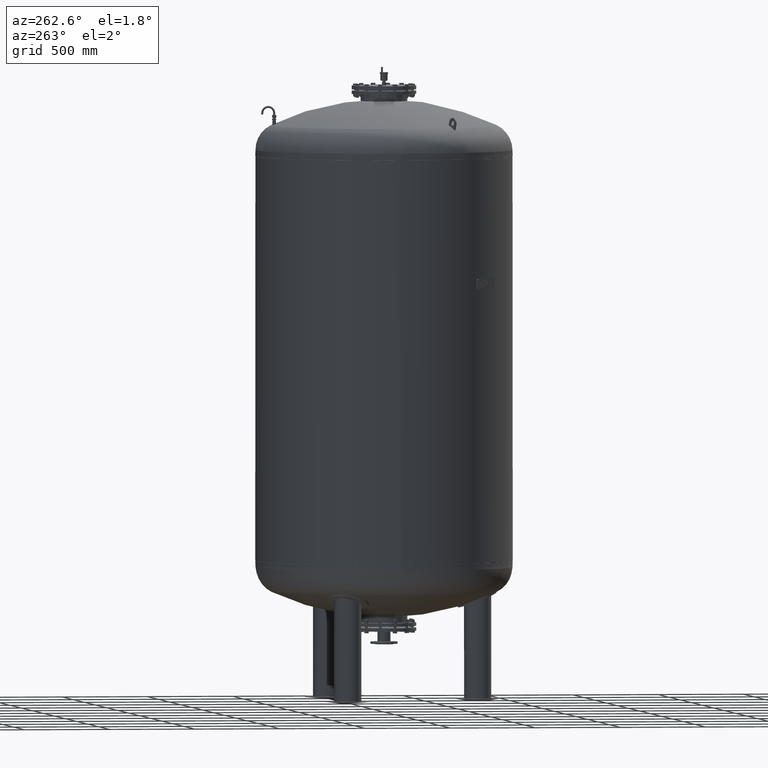
[diagram: clean part render]
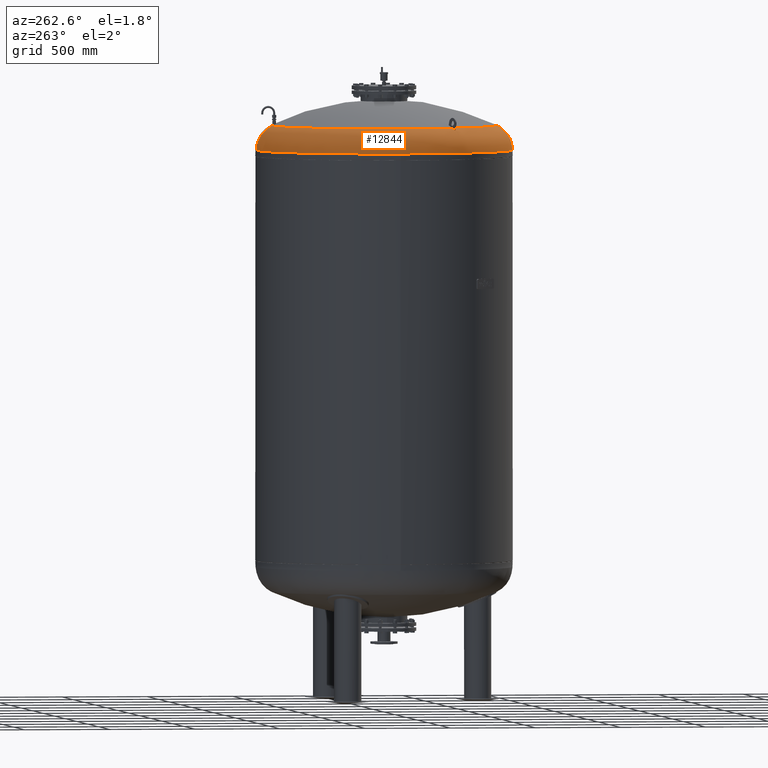
[diagram: same view with one face highlighted and labeled with its STEP entity id]
A machine part, auxiliary view. The second image highlights one B-rep face of the part: STEP entity #12844.
In plain terms, the highlighted toroidal blend (fillet) surface has major radius 591 mm and minor (blend) radius 159 mm.
Its self-contained STEP definition (entity closure, byte-faithful):
#12241=CARTESIAN_POINT('',(-750.0,3.761120E-014,3214.762332584101800));
#12242=VERTEX_POINT('',#12241);
#12249=CARTESIAN_POINT('',(1.267436E-013,750.0,3214.762332584101800));
#12250=VERTEX_POINT('',#12249);
#12251=CARTESIAN_POINT('',(1.459986E-014,-5.423428E-014,3214.762332584101800));
#12252=DIRECTION('',(0.0,0.0,-1.0));
#12253=DIRECTION('',(1.0,0.0,0.0));
#12254=AXIS2_PLACEMENT_3D('',#12251,#12252,#12253);
#12255=CIRCLE('',#12254,750.0);
#12256=EDGE_CURVE('',#12242,#12250,#12255,.T.);
#12336=CARTESIAN_POINT('',(3.489809E-014,-750.0,3214.762332584101800));
#12337=VERTEX_POINT('',#12336);
#12338=CARTESIAN_POINT('',(2.782883E-014,-660.606666666666800,3357.716562866229200));
#12339=VERTEX_POINT('',#12338);
#12340=CARTESIAN_POINT('',(3.489809E-014,-591.0,3214.762332584101800));
#12341=DIRECTION('',(-1.0,0.0,0.0));
#12342=DIRECTION('',(0.0,-1.0,0.0));
#12343=AXIS2_PLACEMENT_3D('',#12340,#12341,#12342);
#12344=CIRCLE('',#12343,159.0);
#12345=EDGE_CURVE('',#12337,#12339,#12344,.T.);
#12355=CARTESIAN_POINT('',(1.087271E-013,660.606666666666800,3357.716562866229200));
#12356=VERTEX_POINT('',#12355);
#12357=CARTESIAN_POINT('',(1.072723E-013,591.0,3214.762332584101800));
#12358=DIRECTION('',(1.0,0.0,0.0));
#12359=DIRECTION('',(0.0,1.0,0.0));
#12360=AXIS2_PLACEMENT_3D('',#12357,#12358,#12359);
#12361=CIRCLE('',#12360,159.0);
#12362=EDGE_CURVE('',#12250,#12356,#12361,.T.);
#12608=CARTESIAN_POINT('',(-570.596255916196580,-332.898003566952920,3357.716562866229700));
#12609=VERTEX_POINT('',#12608);
#12610=CARTESIAN_POINT('',(-588.588482349331340,-343.285820341443810,3345.575471650438900));
#12611=VERTEX_POINT('',#12610);
#12612=CARTESIAN_POINT('',(-570.596255916196580,-332.898003566952920,3357.716562866229700));
#12613=CARTESIAN_POINT('',(-572.053991207973350,-333.739627430067460,3356.896971483751700));
#12614=CARTESIAN_POINT('',(-573.514766784388030,-334.583006602336130,3356.038819520509200));
#12615=CARTESIAN_POINT('',(-576.976356895228950,-336.581556584654270,3353.913031156073000));
#12616=CARTESIAN_POINT('',(-578.974623379368950,-337.735256277185040,3352.612231014925300));
#12617=CARTESIAN_POINT('',(-582.931609407494880,-340.019823225703130,3349.881663004374300));
#12618=CARTESIAN_POINT('',(-584.890327860480620,-341.150689851801190,3348.451893026950500));
#12619=CARTESIAN_POINT('',(-587.410163811145820,-342.605517816231330,3346.507741414689900));
#12620=CARTESIAN_POINT('',(-588.001034993596930,-342.946657452475790,3346.044139472540300));
#12621=CARTESIAN_POINT('',(-588.588482349331340,-343.285820341443810,3345.575471650438900));
#12622=B_SPLINE_CURVE_WITH_KNOTS('',3,(#12612,#12613,#12614,#12615,#12616,#12617,#12618,#12619,#12620,#12621),.UNSPECIFIED.,.F.,.U.,(4,2,2,2,4),(774.656357685334110,780.010496801651020,787.369065281617960,794.727633761584910,796.996981542536560),.UNSPECIFIED.);
#12623=EDGE_CURVE('',#12609,#12611,#12622,.T.);
#12725=CARTESIAN_POINT('',(-591.588482349331340,-338.089667918737230,3345.575471650438900));
#12726=VERTEX_POINT('',#12725);
#12727=CARTESIAN_POINT('',(-588.588482349331340,-343.285820341443810,3345.575471650438900));
#12728=CARTESIAN_POINT('',(-589.090111222557650,-342.418391231104920,3345.578030124753200));
#12729=CARTESIAN_POINT('',(-589.590425441359340,-341.552525995020690,3345.579301453786200));
#12730=CARTESIAN_POINT('',(-590.089401200238290,-340.688274628897030,3345.579301453786200));
#12731=CARTESIAN_POINT('',(-590.588376959113930,-339.824023262779290,3345.579301453786200));
#12732=CARTESIAN_POINT('',(-591.088081140412330,-338.957805821386390,3345.578030124753200));
#12733=CARTESIAN_POINT('',(-591.588482349331340,-338.089667918737230,3345.575471650438900));
#12734=B_SPLINE_CURVE_WITH_KNOTS('',3,(#12727,#12728,#12729,#12730,#12731,#12732,#12733),.UNSPECIFIED.,.F.,.U.,(4,3,4),(-2.993854553274037,0.0,2.993854553253479),.UNSPECIFIED.);
#12735=EDGE_CURVE('',#12611,#12726,#12734,.T.);
#12760=CARTESIAN_POINT('',(-573.596255916196580,-327.701851144246290,3357.716562866229700));
#12761=VERTEX_POINT('',#12760);
#12762=CARTESIAN_POINT('',(-591.588482349331340,-338.089667918737230,3345.575471650438900));
#12763=CARTESIAN_POINT('',(-591.001091399295430,-337.750537595614450,3346.044094471851200));
#12764=CARTESIAN_POINT('',(-590.410277309616280,-337.409430921897070,3346.507652363015000));
#12765=CARTESIAN_POINT('',(-587.890496100690370,-335.954634562624850,3348.451768031998700));
#12766=CARTESIAN_POINT('',(-585.931774475118230,-334.823766104833230,3349.881544856047600));
#12767=CARTESIAN_POINT('',(-581.974781685757190,-332.539195252714250,3352.612126014599200));
#12768=CARTESIAN_POINT('',(-579.976511612969600,-331.385493488276780,3353.912932457119000));
#12769=CARTESIAN_POINT('',(-576.514867502691460,-329.386912329369070,3356.038760350182700));
#12770=CARTESIAN_POINT('',(-575.054041405248540,-328.543503988771140,3356.896943261032400));
#12771=CARTESIAN_POINT('',(-573.596255916196580,-327.701851144246290,3357.716562866229700));
#12772=B_SPLINE_CURVE_WITH_KNOTS('',3,(#12762,#12763,#12764,#12765,#12766,#12767,#12768,#12769,#12770,#12771),.UNSPECIFIED.,.F.,.U.,(4,2,2,2,4),(144.901635701804910,147.170765481127490,154.529352849647950,161.887940218168410,167.242267557251490),.UNSPECIFIED.);
#12773=EDGE_CURVE('',#12726,#12761,#12772,.T.);
#12810=CARTESIAN_POINT('',(3.489809E-014,-5.423428E-014,3214.762332584101800));
#12811=DIRECTION('',(4.945121E-017,-1.836970E-016,-1.0));
#12812=DIRECTION('',(0.0,-1.0,0.0));
#12813=AXIS2_PLACEMENT_3D('',#12810,#12811,#12812);
#12814=TOROIDAL_SURFACE('',#12813,591.0,159.0);
#12815=ORIENTED_EDGE('',*,*,#12345,.T.);
#12816=CARTESIAN_POINT('',(7.530601E-015,-2.797401E-014,3357.716562866229200));
#12817=DIRECTION('',(0.0,0.0,-1.0));
#12818=DIRECTION('',(1.0,0.0,0.0));
#12819=AXIS2_PLACEMENT_3D('',#12816,#12817,#12818);
#12820=CIRCLE('',#12819,660.606666666666800);
#12821=EDGE_CURVE('',#12339,#12609,#12820,.T.);
#12822=ORIENTED_EDGE('',*,*,#12821,.T.);
#12823=ORIENTED_EDGE('',*,*,#12623,.T.);
#12824=ORIENTED_EDGE('',*,*,#12735,.T.);
#12825=ORIENTED_EDGE('',*,*,#12773,.T.);
#12826=CARTESIAN_POINT('',(7.530601E-015,-2.797401E-014,3357.716562866229200));
#12827=DIRECTION('',(0.0,0.0,-1.0));
#12828=DIRECTION('',(1.0,0.0,0.0));
#12829=AXIS2_PLACEMENT_3D('',#12826,#12827,#12828);
#12830=CIRCLE('',#12829,660.606666666666800);
#12831=EDGE_CURVE('',#12761,#12356,#12830,.T.);
#12832=ORIENTED_EDGE('',*,*,#12831,.T.);
#12833=ORIENTED_EDGE('',*,*,#12362,.F.);
#12834=ORIENTED_EDGE('',*,*,#12256,.F.);
#12835=CARTESIAN_POINT('',(1.459986E-014,-5.423428E-014,3214.762332584101800));
#12836=DIRECTION('',(0.0,0.0,-1.0));
#12837=DIRECTION('',(1.0,0.0,0.0));
#12838=AXIS2_PLACEMENT_3D('',#12835,#12836,#12837);
#12839=CIRCLE('',#12838,750.0);
#12840=EDGE_CURVE('',#12337,#12242,#12839,.T.);
#12841=ORIENTED_EDGE('',*,*,#12840,.F.);
#12842=EDGE_LOOP('',(#12815,#12822,#12823,#12824,#12825,#12832,#12833,#12834,#12841));
#12843=FACE_OUTER_BOUND('',#12842,.T.);
#12844=ADVANCED_FACE('',(#12843),#12814,.T.);